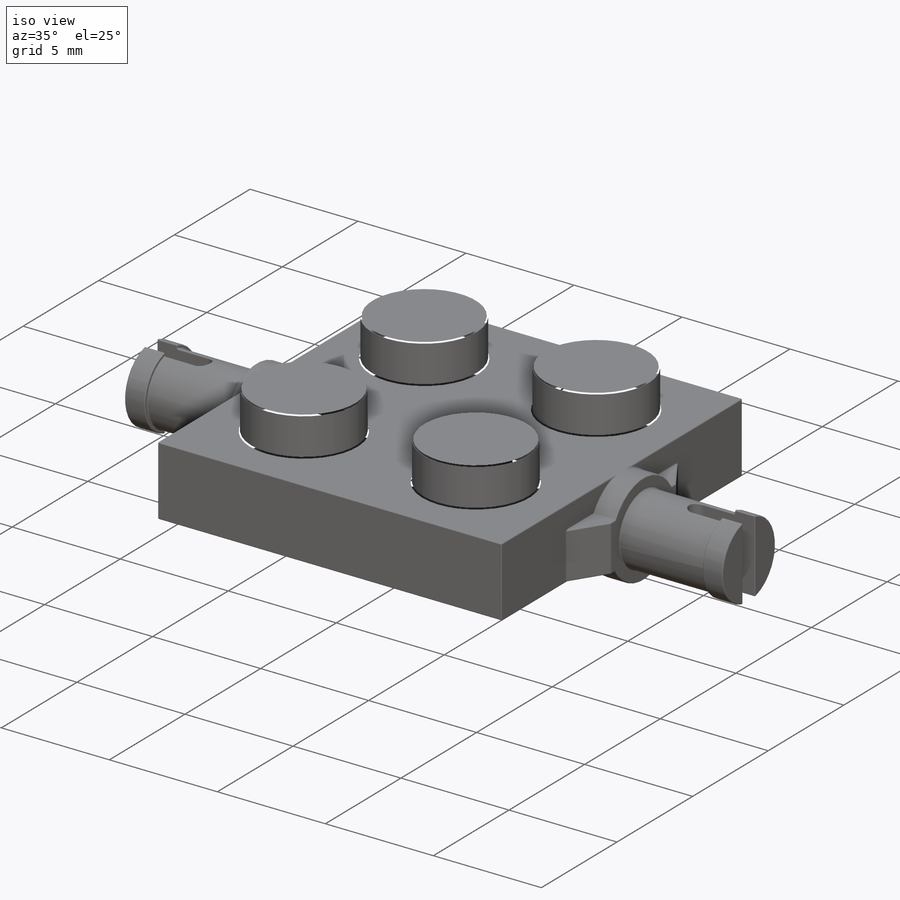
[diagram: iso view]
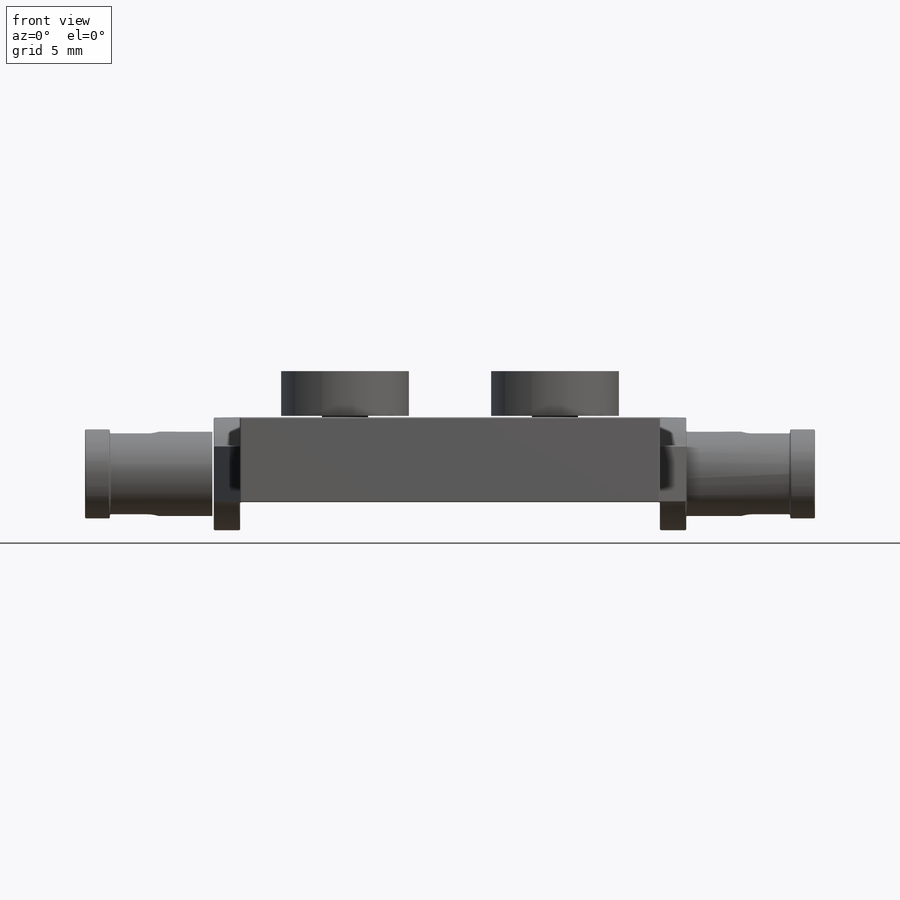
[diagram: front view]
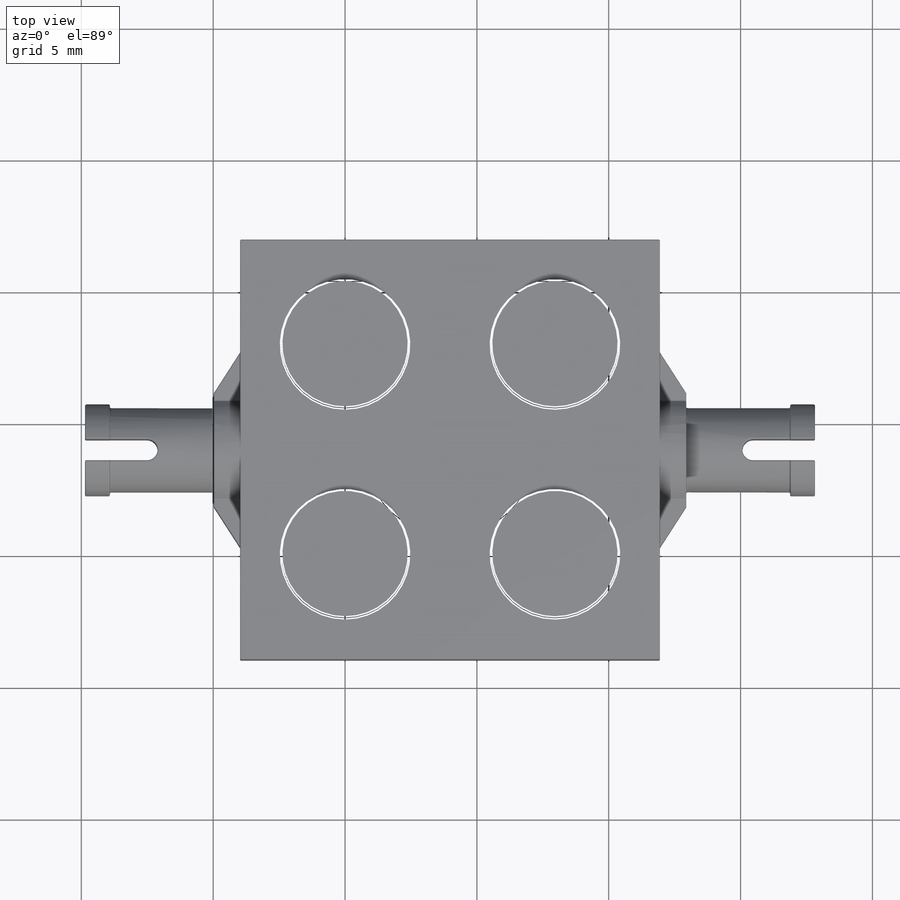
[diagram: top view]
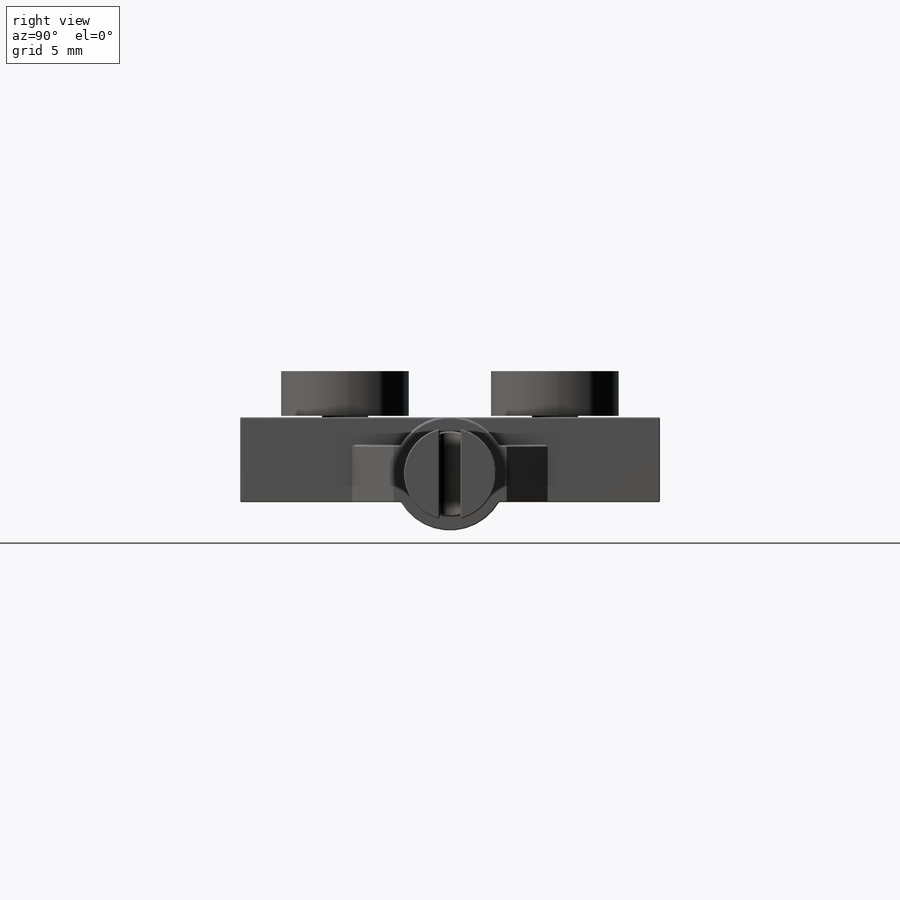
[diagram: right view]
SOLIDWORKS PART (.sldprt)
format: sldprt  version: not decoded by parser v0  size: 1,126,400 bytes
history: native  units: mm
features: sketch x11, extrude x8, pattern_linear x2, cut_extrude x2, material x1, shell x1, plane x1, mirror x1, fillet x1 (+14 scaffold rows collapsed)
feature tree (42):
  scaffold x14  (default folders/planes/origin — collapsed)
  material  "Material <not specified>"
  sketch  "Sketch1"  dims[D1=7.96mm]
  extrude  "Extrude1"  Depth=3.22mm
  sketch  "Sketch2"  dims[D1=4.85mm]
  extrude  "Extrude2"  Depth=1.8mm
  pattern_linear  "LPattern1"  Count1=2 Count2=1 Spacing1=7.96mm Spacing2=50mm
  pattern_linear  "LPattern2"  Count1=2 Count2=1 Spacing1=7.96mm Spacing2=50mm
  shell  "Shell1"  Thickness=1.55mm
  sketch  "Sketch3"
  cut_extrude  "Extrude3"  Depth=0.14mm
  sketch  "Sketch4"  dims[D1=6.46mm D2=0.86mm]
  extrude  "Extrude4"  [1 undecoded]
  sketch  "Sketch5"  dims[D1=~1.073333mm]
  extrude  "Extrude5"  Depth=1mm
  sketch  "Sketch6"  dims[D1=7.4mm]
  extrude  "Extrude6"  Depth=2.146667mm
  sketch  "Sketch7"  dims[D1=3.2mm]
  extrude  "Extrude7"  Depth=4.88mm
  sketch  "Sketch8"  dims[D1=3.5mm]
  extrude  "Extrude8"  Depth=0.94mm
  sketch  "Sketch9"  dims[c1.D2=0.4mm c1.D1=0.8mm c2.D2=2.35mm]
  cut_extrude  "Extrude9"  [1 undecoded]
  sketch  "Sketch10"
  plane  "Plane2"  Offset=3.98mm
  mirror  "Mirror1"
  sketch  "Sketch11"  dims[D1=1.2mm]
  extrude  "Extrude10"  [1 undecoded]
  fillet  "Fillet1"  Radius=0.05mm
decode coverage: 20 of 26 modeling features carry decoded parameters
note: ~ marks probable driven/reference dimensions
note: 3 parameter values undecoded
summary: no parameter record found for 3 features
note: suppression state not decoded; provenance and decode notes live in map.json
